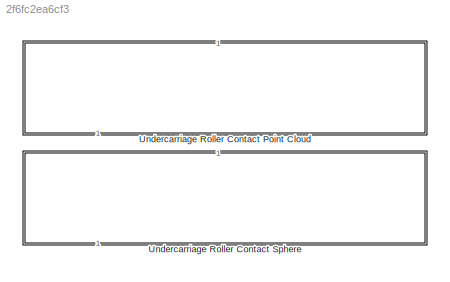
MODEL slx_2f6fc2ea6cf3
KIND library
CONFIG SolverName = VariableStepAuto
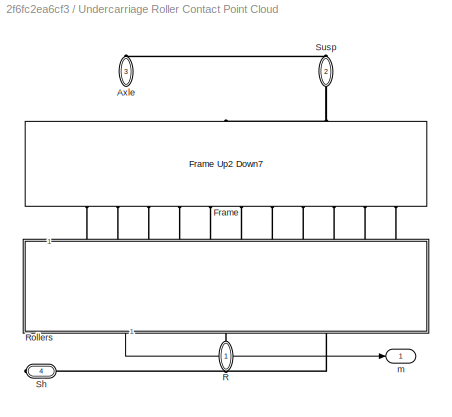
BLOCK [SubSystem] Undercarriage Roller Contact Point Cloud
  NameLocation = left
BLOCK [PMIOPort] Undercarriage Roller Contact Point Cloud/Axle
  NameLocation = left
  Port = 3
  Side = Right
BLOCK [Reference] Undercarriage Roller Contact Point Cloud/Frame  REF=sm_trackV_lib_frame_i1u2l7/Frame
Up2 Down7
  NameLocation = left
  SourceBlock = sm_trackV_lib_frame_i1u2l7/Frame\nUp2 Down7
  SourceType = Frame Locations, Sprocket, Rollers (9), Idler (1)
BLOCK [PMIOPort] Undercarriage Roller Contact Point Cloud/R
  NameLocation = left
  Side = Right
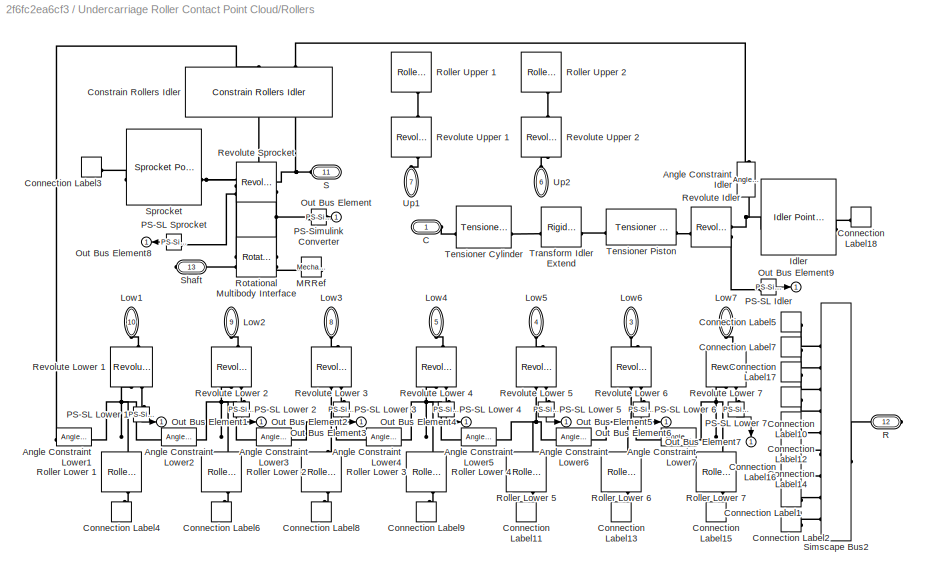
BLOCK [SubSystem] Undercarriage Roller Contact Point Cloud/Rollers
  NameLocation = left
BLOCK [Reference] Undercarriage Roller Contact Point Cloud/Rollers/Angle Constraint Idler  REF=sm_rollerV_lib_underc_elem/Angle
Constraint
  NameLocation = left
  SourceBlock = sm_rollerV_lib_underc_elem/Angle\nConstraint
  SourceType = SubSystem
BLOCK [Reference] Undercarriage Roller Contact Point Cloud/Rollers/Angle Constraint Lower1  REF=sm_rollerV_lib_underc_elem/Angle
Constraint
  SourceBlock = sm_rollerV_lib_underc_elem/Angle\nConstraint
  SourceType = SubSystem
BLOCK [Reference] Undercarriage Roller Contact Point Cloud/Rollers/Angle Constraint Lower2  REF=sm_rollerV_lib_underc_elem/Angle
Constraint
  SourceBlock = sm_rollerV_lib_underc_elem/Angle\nConstraint
  SourceType = SubSystem
BLOCK [Reference] Undercarriage Roller Contact Point Cloud/Rollers/Angle Constraint Lower3  REF=sm_rollerV_lib_underc_elem/Angle
Constraint
  SourceBlock = sm_rollerV_lib_underc_elem/Angle\nConstraint
  SourceType = SubSystem
BLOCK [Reference] Undercarriage Roller Contact Point Cloud/Rollers/Angle Constraint Lower4  REF=sm_rollerV_lib_underc_elem/Angle
Constraint
  SourceBlock = sm_rollerV_lib_underc_elem/Angle\nConstraint
  SourceType = SubSystem
BLOCK [Reference] Undercarriage Roller Contact Point Cloud/Rollers/Angle Constraint Lower5  REF=sm_rollerV_lib_underc_elem/Angle
Constraint
  SourceBlock = sm_rollerV_lib_underc_elem/Angle\nConstraint
  SourceType = SubSystem
BLOCK [Reference] Undercarriage Roller Contact Point Cloud/Rollers/Angle Constraint Lower6  REF=sm_rollerV_lib_underc_elem/Angle
Constraint
  SourceBlock = sm_rollerV_lib_underc_elem/Angle\nConstraint
  SourceType = SubSystem
BLOCK [Reference] Undercarriage Roller Contact Point Cloud/Rollers/Angle Constraint Lower7  REF=sm_rollerV_lib_underc_elem/Angle
Constraint
  SourceBlock = sm_rollerV_lib_underc_elem/Angle\nConstraint
  SourceType = SubSystem
BLOCK [PMIOPort] Undercarriage Roller Contact Point Cloud/Rollers/C
  Side = Left
BLOCK [ConnectionLabel] Undercarriage Roller Contact Point Cloud/Rollers/Connection Label1
  Label = Spr
BLOCK [ConnectionLabel] Undercarriage Roller Contact Point Cloud/Rollers/Connection Label10
  Label = L4
BLOCK [ConnectionLabel] Undercarriage Roller Contact Point Cloud/Rollers/Connection Label11
  Label = L5
  NameLocation = left
BLOCK [ConnectionLabel] Undercarriage Roller Contact Point Cloud/Rollers/Connection Label12
  Label = L5
BLOCK [ConnectionLabel] Undercarriage Roller Contact Point Cloud/Rollers/Connection Label13
  Label = L6
  NameLocation = left
BLOCK [ConnectionLabel] Undercarriage Roller Contact Point Cloud/Rollers/Connection Label14
  Label = L6
BLOCK [ConnectionLabel] Undercarriage Roller Contact Point Cloud/Rollers/Connection Label15
  Label = L7
  NameLocation = left
BLOCK [ConnectionLabel] Undercarriage Roller Contact Point Cloud/Rollers/Connection Label16
  Label = L7
BLOCK [ConnectionLabel] Undercarriage Roller Contact Point Cloud/Rollers/Connection Label17
  Label = L3
BLOCK [ConnectionLabel] Undercarriage Roller Contact Point Cloud/Rollers/Connection Label18
  Label = Idl
BLOCK [ConnectionLabel] Undercarriage Roller Contact Point Cloud/Rollers/Connection Label2
  Label = Idl
BLOCK [ConnectionLabel] Undercarriage Roller Contact Point Cloud/Rollers/Connection Label3
  Label = Spr
BLOCK [ConnectionLabel] Undercarriage Roller Contact Point Cloud/Rollers/Connection Label4
  Label = L1
  NameLocation = left
BLOCK [ConnectionLabel] Undercarriage Roller Contact Point Cloud/Rollers/Connection Label5
  Label = L1
BLOCK [ConnectionLabel] Undercarriage Roller Contact Point Cloud/Rollers/Connection Label6
  Label = L2
  NameLocation = left
BLOCK [ConnectionLabel] Undercarriage Roller Contact Point Cloud/Rollers/Connection Label7
  Label = L2
BLOCK [ConnectionLabel] Undercarriage Roller Contact Point Cloud/Rollers/Connection Label8
  Label = L3
  NameLocation = left
BLOCK [ConnectionLabel] Undercarriage Roller Contact Point Cloud/Rollers/Connection Label9
  Label = L4
  NameLocation = left
BLOCK [Reference] Undercarriage Roller Contact Point Cloud/Rollers/Constrain Rollers Idler  REF=sm_rollerV_lib_underc_elem/Constrain
Rollers
Idler
  NameLocation = left
  SourceBlock = sm_rollerV_lib_underc_elem/Constrain\nRollers\nIdler
  SourceType = Constrain Sprocket, Lower Rollers, and Idler
BLOCK [Reference] Undercarriage Roller Contact Point Cloud/Rollers/Idler  REF=sm_rollerV_lib_underc_elem/Idler Point Cloud
  SourceBlock = sm_rollerV_lib_underc_elem/Idler Point Cloud
  SourceType = Idler
BLOCK [PMIOPort] Undercarriage Roller Contact Point Cloud/Rollers/Low1
  NameLocation = left
  Port = 10
  Side = Left
BLOCK [PMIOPort] Undercarriage Roller Contact Point Cloud/Rollers/Low2
  NameLocation = left
  Port = 9
  Side = Left
BLOCK [PMIOPort] Undercarriage Roller Contact Point Cloud/Rollers/Low3
  NameLocation = left
  Port = 8
  Side = Left
BLOCK [PMIOPort] Undercarriage Roller Contact Point Cloud/Rollers/Low4
  NameLocation = left
  Port = 5
  Side = Left
BLOCK [PMIOPort] Undercarriage Roller Contact Point Cloud/Rollers/Low5
  NameLocation = left
  Port = 4
  Side = Left
BLOCK [PMIOPort] Undercarriage Roller Contact Point Cloud/Rollers/Low6
  NameLocation = left
  Port = 3
  Side = Left
BLOCK [PMIOPort] Undercarriage Roller Contact Point Cloud/Rollers/Low7
  NameLocation = left
  Port = 2
  Side = Left
BLOCK [Reference] Undercarriage Roller Contact Point Cloud/Rollers/MRRef  REF=fl_lib/Mechanical/Rotational Elements/Mechanical
Rotational Reference
  NameLocation = right
  SourceBlock = fl_lib/Mechanical/Rotational Elements/Mechanical\nRotational Reference
  SourceType = Mechanical\nRotational Reference
BLOCK [Outport] Undercarriage Roller Contact Point Cloud/Rollers/Out Bus Element
  NameLocation = top
BLOCK [Outport] Undercarriage Roller Contact Point Cloud/Rollers/Out Bus Element1
  NameLocation = left
BLOCK [Outport] Undercarriage Roller Contact Point Cloud/Rollers/Out Bus Element2
  NameLocation = top
BLOCK [Outport] Undercarriage Roller Contact Point Cloud/Rollers/Out Bus Element3
  NameLocation = top
BLOCK [Outport] Undercarriage Roller Contact Point Cloud/Rollers/Out Bus Element4
  NameLocation = top
BLOCK [Outport] Undercarriage Roller Contact Point Cloud/Rollers/Out Bus Element5
  NameLocation = top
BLOCK [Outport] Undercarriage Roller Contact Point Cloud/Rollers/Out Bus Element6
  NameLocation = top
BLOCK [Outport] Undercarriage Roller Contact Point Cloud/Rollers/Out Bus Element7
  NameLocation = right
BLOCK [Outport] Undercarriage Roller Contact Point Cloud/Rollers/Out Bus Element8
  NameLocation = top
BLOCK [Outport] Undercarriage Roller Contact Point Cloud/Rollers/Out Bus Element9
  NameLocation = top
BLOCK [Reference] Undercarriage Roller Contact Point Cloud/Rollers/PS-SL Idler  REF=nesl_utility/PS-Simulink
Converter
  SourceBlock = nesl_utility/PS-Simulink\nConverter
  SourceType = PS-Simulink\nConverter
BLOCK [Reference] Undercarriage Roller Contact Point Cloud/Rollers/PS-SL Lower 1  REF=nesl_utility/PS-Simulink
Converter
  NameLocation = left
  SourceBlock = nesl_utility/PS-Simulink\nConverter
  SourceType = PS-Simulink\nConverter
BLOCK [Reference] Undercarriage Roller Contact Point Cloud/Rollers/PS-SL Lower 2  REF=nesl_utility/PS-Simulink
Converter
  NameLocation = left
  SourceBlock = nesl_utility/PS-Simulink\nConverter
  SourceType = PS-Simulink\nConverter
BLOCK [Reference] Undercarriage Roller Contact Point Cloud/Rollers/PS-SL Lower 3  REF=nesl_utility/PS-Simulink
Converter
  NameLocation = left
  SourceBlock = nesl_utility/PS-Simulink\nConverter
  SourceType = PS-Simulink\nConverter
BLOCK [Reference] Undercarriage Roller Contact Point Cloud/Rollers/PS-SL Lower 4  REF=nesl_utility/PS-Simulink
Converter
  NameLocation = left
  SourceBlock = nesl_utility/PS-Simulink\nConverter
  SourceType = PS-Simulink\nConverter
BLOCK [Reference] Undercarriage Roller Contact Point Cloud/Rollers/PS-SL Lower 5  REF=nesl_utility/PS-Simulink
Converter
  NameLocation = left
  SourceBlock = nesl_utility/PS-Simulink\nConverter
  SourceType = PS-Simulink\nConverter
BLOCK [Reference] Undercarriage Roller Contact Point Cloud/Rollers/PS-SL Lower 6  REF=nesl_utility/PS-Simulink
Converter
  NameLocation = left
  SourceBlock = nesl_utility/PS-Simulink\nConverter
  SourceType = PS-Simulink\nConverter
BLOCK [Reference] Undercarriage Roller Contact Point Cloud/Rollers/PS-SL Lower 7  REF=nesl_utility/PS-Simulink
Converter
  NameLocation = left
  SourceBlock = nesl_utility/PS-Simulink\nConverter
  SourceType = PS-Simulink\nConverter
BLOCK [Reference] Undercarriage Roller Contact Point Cloud/Rollers/PS-SL Sprocket  REF=nesl_utility/PS-Simulink
Converter
  SourceBlock = nesl_utility/PS-Simulink\nConverter
  SourceType = PS-Simulink\nConverter
BLOCK [Reference] Undercarriage Roller Contact Point Cloud/Rollers/PS-Simulink Converter  REF=nesl_utility/PS-Simulink
Converter
  SourceBlock = nesl_utility/PS-Simulink\nConverter
  SourceType = PS-Simulink\nConverter
BLOCK [PMIOPort] Undercarriage Roller Contact Point Cloud/Rollers/R
  Port = 12
  Side = Right
BLOCK [Reference] Undercarriage Roller Contact Point Cloud/Rollers/Revolute Idler  REF=sm_lib/Joints/Revolute Joint
  SourceBlock = sm_lib/Joints/Revolute Joint
  SourceType = Revolute Joint
BLOCK [Reference] Undercarriage Roller Contact Point Cloud/Rollers/Revolute Lower 1  REF=sm_lib/Joints/Revolute Joint
  NameLocation = left
  SourceBlock = sm_lib/Joints/Revolute Joint
  SourceType = Revolute Joint
BLOCK [Reference] Undercarriage Roller Contact Point Cloud/Rollers/Revolute Lower 2  REF=sm_lib/Joints/Revolute Joint
  NameLocation = left
  SourceBlock = sm_lib/Joints/Revolute Joint
  SourceType = Revolute Joint
BLOCK [Reference] Undercarriage Roller Contact Point Cloud/Rollers/Revolute Lower 3  REF=sm_lib/Joints/Revolute Joint
  NameLocation = left
  SourceBlock = sm_lib/Joints/Revolute Joint
  SourceType = Revolute Joint
BLOCK [Reference] Undercarriage Roller Contact Point Cloud/Rollers/Revolute Lower 4  REF=sm_lib/Joints/Revolute Joint
  NameLocation = left
  SourceBlock = sm_lib/Joints/Revolute Joint
  SourceType = Revolute Joint
BLOCK [Reference] Undercarriage Roller Contact Point Cloud/Rollers/Revolute Lower 5  REF=sm_lib/Joints/Revolute Joint
  NameLocation = left
  SourceBlock = sm_lib/Joints/Revolute Joint
  SourceType = Revolute Joint
BLOCK [Reference] Undercarriage Roller Contact Point Cloud/Rollers/Revolute Lower 6  REF=sm_lib/Joints/Revolute Joint
  NameLocation = left
  SourceBlock = sm_lib/Joints/Revolute Joint
  SourceType = Revolute Joint
BLOCK [Reference] Undercarriage Roller Contact Point Cloud/Rollers/Revolute Lower 7  REF=sm_lib/Joints/Revolute Joint
  NameLocation = left
  SourceBlock = sm_lib/Joints/Revolute Joint
  SourceType = Revolute Joint
BLOCK [Reference] Undercarriage Roller Contact Point Cloud/Rollers/Revolute Sprocket  REF=sm_lib/Joints/Revolute Joint
  SourceBlock = sm_lib/Joints/Revolute Joint
  SourceType = Revolute Joint
BLOCK [Reference] Undercarriage Roller Contact Point Cloud/Rollers/Revolute Upper 1  REF=sm_lib/Joints/Revolute Joint
  NameLocation = right
  SourceBlock = sm_lib/Joints/Revolute Joint
  SourceType = Revolute Joint
BLOCK [Reference] Undercarriage Roller Contact Point Cloud/Rollers/Revolute Upper 2  REF=sm_lib/Joints/Revolute Joint
  NameLocation = right
  SourceBlock = sm_lib/Joints/Revolute Joint
  SourceType = Revolute Joint
BLOCK [Reference] Undercarriage Roller Contact Point Cloud/Rollers/Roller Lower 1  REF=sm_rollerV_lib_underc_elem/Roller Lower
Point Cloud
  LibrarySourceBlock = sm_chain_drive_lib/Pulley_Bot
  NameLocation = left
  SourceBlock = sm_rollerV_lib_underc_elem/Roller Lower\nPoint Cloud
  SourceType = Lower Roller
BLOCK [Reference] Undercarriage Roller Contact Point Cloud/Rollers/Roller Lower 2  REF=sm_rollerV_lib_underc_elem/Roller Lower
Point Cloud
  LibrarySourceBlock = sm_chain_drive_lib/Pulley_Bot
  NameLocation = left
  SourceBlock = sm_rollerV_lib_underc_elem/Roller Lower\nPoint Cloud
  SourceType = Lower Roller
BLOCK [Reference] Undercarriage Roller Contact Point Cloud/Rollers/Roller Lower 3  REF=sm_rollerV_lib_underc_elem/Roller Lower
Point Cloud
  LibrarySourceBlock = sm_chain_drive_lib/Pulley_Bot
  NameLocation = left
  SourceBlock = sm_rollerV_lib_underc_elem/Roller Lower\nPoint Cloud
  SourceType = Lower Roller
BLOCK [Reference] Undercarriage Roller Contact Point Cloud/Rollers/Roller Lower 4  REF=sm_rollerV_lib_underc_elem/Roller Lower
Point Cloud
  LibrarySourceBlock = sm_chain_drive_lib/Pulley_Bot
  NameLocation = left
  SourceBlock = sm_rollerV_lib_underc_elem/Roller Lower\nPoint Cloud
  SourceType = Lower Roller
BLOCK [Reference] Undercarriage Roller Contact Point Cloud/Rollers/Roller Lower 5  REF=sm_rollerV_lib_underc_elem/Roller Lower
Point Cloud
  LibrarySourceBlock = sm_chain_drive_lib/Pulley_Bot
  NameLocation = left
  SourceBlock = sm_rollerV_lib_underc_elem/Roller Lower\nPoint Cloud
  SourceType = Lower Roller
BLOCK [Reference] Undercarriage Roller Contact Point Cloud/Rollers/Roller Lower 6  REF=sm_rollerV_lib_underc_elem/Roller Lower
Point Cloud
  LibrarySourceBlock = sm_chain_drive_lib/Pulley_Bot
  NameLocation = left
  SourceBlock = sm_rollerV_lib_underc_elem/Roller Lower\nPoint Cloud
  SourceType = Lower Roller
BLOCK [Reference] Undercarriage Roller Contact Point Cloud/Rollers/Roller Lower 7  REF=sm_rollerV_lib_underc_elem/Roller Lower
Point Cloud
  LibrarySourceBlock = sm_chain_drive_lib/Pulley_Bot
  NameLocation = left
  SourceBlock = sm_rollerV_lib_underc_elem/Roller Lower\nPoint Cloud
  SourceType = Lower Roller
BLOCK [Reference] Undercarriage Roller Contact Point Cloud/Rollers/Roller Upper 1  REF=sm_trackV_lib_chain_underc_elem/Roller Upper
  LibrarySourceBlock = sm_chain_drive_lib/Pulley_Top
  NameLocation = right
  SourceBlock = sm_trackV_lib_chain_underc_elem/Roller Upper
  SourceType = Upper Roller
BLOCK [Reference] Undercarriage Roller Contact Point Cloud/Rollers/Roller Upper 2  REF=sm_trackV_lib_chain_underc_elem/Roller Upper
  LibrarySourceBlock = sm_chain_drive_lib/Pulley_Top
  NameLocation = right
  SourceBlock = sm_trackV_lib_chain_underc_elem/Roller Upper
  SourceType = Upper Roller
BLOCK [Reference] Undercarriage Roller Contact Point Cloud/Rollers/Rotational Multibody Interface  REF=fl_lib/Mechanical/Multibody Interfaces/Rotational Multibody
Interface
  SourceBlock = fl_lib/Mechanical/Multibody Interfaces/Rotational Multibody\nInterface
  SourceType = Rotational Multibody\nInterface
BLOCK [PMIOPort] Undercarriage Roller Contact Point Cloud/Rollers/S
  NameLocation = top
  Port = 11
  Side = Left
BLOCK [PMIOPort] Undercarriage Roller Contact Point Cloud/Rollers/Shaft
  Port = 13
  Side = Right
BLOCK [SimscapeBus] Undercarriage Roller Contact Point Cloud/Rollers/Simscape Bus2
  ConnectionType = Bus: CBO_Roller9
  HierarchyStrings = P1;P2;P3;P4;P5;P6;P7;P8;P9
  NameLocation = top
BLOCK [Reference] Undercarriage Roller Contact Point Cloud/Rollers/Sprocket  REF=sm_rollerV_lib_underc_elem/Sprocket Point Cloud
  SourceBlock = sm_rollerV_lib_underc_elem/Sprocket Point Cloud
  SourceType = Sprocket
BLOCK [Reference] Undercarriage Roller Contact Point Cloud/Rollers/Tensioner Cylinder  REF=sm_trackV_lib_chain_underc_elem/Tensioner Cylinder
  LibrarySourceBlock = sm_chain_drive_lib/Idler_Housing
  SourceBlock = sm_trackV_lib_chain_underc_elem/Tensioner Cylinder
  SourceType = Tensioner Cylinder
BLOCK [Reference] Undercarriage Roller Contact Point Cloud/Rollers/Tensioner Piston  REF=sm_trackV_lib_chain_underc_elem/Tensioner Piston
  LibrarySourceBlock = sm_chain_drive_lib/ldler_Damper
  SourceBlock = sm_trackV_lib_chain_underc_elem/Tensioner Piston
  SourceType = Tensioner Piston and Bracket
BLOCK [Reference] Undercarriage Roller Contact Point Cloud/Rollers/Transform Idler Extend  REF=sm_lib/Frames and
Transforms/Rigid
Transform
  SourceBlock = sm_lib/Frames and\nTransforms/Rigid\nTransform
  SourceType = Rigid\nTransform
BLOCK [PMIOPort] Undercarriage Roller Contact Point Cloud/Rollers/Up1
  NameLocation = right
  Port = 7
  Side = Left
BLOCK [PMIOPort] Undercarriage Roller Contact Point Cloud/Rollers/Up2
  NameLocation = right
  Port = 6
  Side = Left
BLOCK [PMIOPort] Undercarriage Roller Contact Point Cloud/Sh
  NameLocation = top
  Port = 4
  Side = Right
BLOCK [PMIOPort] Undercarriage Roller Contact Point Cloud/Susp
  NameLocation = left
  Port = 2
  Side = Right
BLOCK [Outport] Undercarriage Roller Contact Point Cloud/m
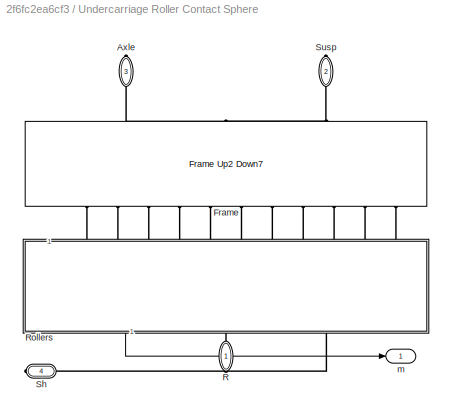
BLOCK [SubSystem] Undercarriage Roller Contact Sphere
  NameLocation = left
BLOCK [PMIOPort] Undercarriage Roller Contact Sphere/Axle
  NameLocation = left
  Port = 3
  Side = Right
BLOCK [Reference] Undercarriage Roller Contact Sphere/Frame  REF=sm_trackV_lib_frame_i1u2l7/Frame
Up2 Down7
  NameLocation = left
  SourceBlock = sm_trackV_lib_frame_i1u2l7/Frame\nUp2 Down7
  SourceType = Frame Locations, Sprocket, Rollers (9), Idler (1)
BLOCK [PMIOPort] Undercarriage Roller Contact Sphere/R
  NameLocation = left
  Side = Right
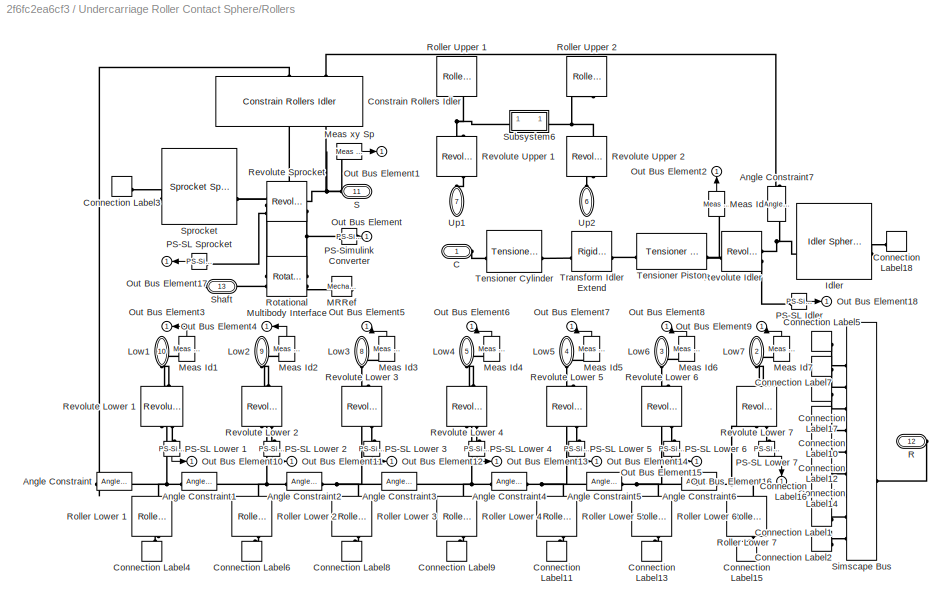
BLOCK [SubSystem] Undercarriage Roller Contact Sphere/Rollers
  NameLocation = left
BLOCK [Reference] Undercarriage Roller Contact Sphere/Rollers/Angle Constraint  REF=sm_rollerV_lib_underc_elem/Angle
Constraint
  SourceBlock = sm_rollerV_lib_underc_elem/Angle\nConstraint
  SourceType = SubSystem
BLOCK [Reference] Undercarriage Roller Contact Sphere/Rollers/Angle Constraint1  REF=sm_rollerV_lib_underc_elem/Angle
Constraint
  SourceBlock = sm_rollerV_lib_underc_elem/Angle\nConstraint
  SourceType = SubSystem
BLOCK [Reference] Undercarriage Roller Contact Sphere/Rollers/Angle Constraint2  REF=sm_rollerV_lib_underc_elem/Angle
Constraint
  SourceBlock = sm_rollerV_lib_underc_elem/Angle\nConstraint
  SourceType = SubSystem
BLOCK [Reference] Undercarriage Roller Contact Sphere/Rollers/Angle Constraint3  REF=sm_rollerV_lib_underc_elem/Angle
Constraint
  SourceBlock = sm_rollerV_lib_underc_elem/Angle\nConstraint
  SourceType = SubSystem
BLOCK [Reference] Undercarriage Roller Contact Sphere/Rollers/Angle Constraint4  REF=sm_rollerV_lib_underc_elem/Angle
Constraint
  SourceBlock = sm_rollerV_lib_underc_elem/Angle\nConstraint
  SourceType = SubSystem
BLOCK [Reference] Undercarriage Roller Contact Sphere/Rollers/Angle Constraint5  REF=sm_rollerV_lib_underc_elem/Angle
Constraint
  SourceBlock = sm_rollerV_lib_underc_elem/Angle\nConstraint
  SourceType = SubSystem
BLOCK [Reference] Undercarriage Roller Contact Sphere/Rollers/Angle Constraint6  REF=sm_rollerV_lib_underc_elem/Angle
Constraint
  SourceBlock = sm_rollerV_lib_underc_elem/Angle\nConstraint
  SourceType = SubSystem
BLOCK [Reference] Undercarriage Roller Contact Sphere/Rollers/Angle Constraint7  REF=sm_rollerV_lib_underc_elem/Angle
Constraint
  NameLocation = left
  SourceBlock = sm_rollerV_lib_underc_elem/Angle\nConstraint
  SourceType = SubSystem
BLOCK [PMIOPort] Undercarriage Roller Contact Sphere/Rollers/C
  Side = Left
BLOCK [ConnectionLabel] Undercarriage Roller Contact Sphere/Rollers/Connection Label1
  Label = Spr
BLOCK [ConnectionLabel] Undercarriage Roller Contact Sphere/Rollers/Connection Label10
  Label = L4
BLOCK [ConnectionLabel] Undercarriage Roller Contact Sphere/Rollers/Connection Label11
  Label = L5
  NameLocation = left
BLOCK [ConnectionLabel] Undercarriage Roller Contact Sphere/Rollers/Connection Label12
  Label = L5
BLOCK [ConnectionLabel] Undercarriage Roller Contact Sphere/Rollers/Connection Label13
  Label = L6
  NameLocation = left
BLOCK [ConnectionLabel] Undercarriage Roller Contact Sphere/Rollers/Connection Label14
  Label = L6
BLOCK [ConnectionLabel] Undercarriage Roller Contact Sphere/Rollers/Connection Label15
  Label = L7
  NameLocation = left
BLOCK [ConnectionLabel] Undercarriage Roller Contact Sphere/Rollers/Connection Label16
  Label = L7
BLOCK [ConnectionLabel] Undercarriage Roller Contact Sphere/Rollers/Connection Label17
  Label = L3
BLOCK [ConnectionLabel] Undercarriage Roller Contact Sphere/Rollers/Connection Label18
  Label = Idl
BLOCK [ConnectionLabel] Undercarriage Roller Contact Sphere/Rollers/Connection Label2
  Label = Idl
BLOCK [ConnectionLabel] Undercarriage Roller Contact Sphere/Rollers/Connection Label3
  Label = Spr
BLOCK [ConnectionLabel] Undercarriage Roller Contact Sphere/Rollers/Connection Label4
  Label = L1
  NameLocation = left
BLOCK [ConnectionLabel] Undercarriage Roller Contact Sphere/Rollers/Connection Label5
  Label = L1
BLOCK [ConnectionLabel] Undercarriage Roller Contact Sphere/Rollers/Connection Label6
  Label = L2
  NameLocation = left
BLOCK [ConnectionLabel] Undercarriage Roller Contact Sphere/Rollers/Connection Label7
  Label = L2
BLOCK [ConnectionLabel] Undercarriage Roller Contact Sphere/Rollers/Connection Label8
  Label = L3
  NameLocation = left
BLOCK [ConnectionLabel] Undercarriage Roller Contact Sphere/Rollers/Connection Label9
  Label = L4
  NameLocation = left
BLOCK [Reference] Undercarriage Roller Contact Sphere/Rollers/Constrain Rollers Idler  REF=sm_rollerV_lib_underc_elem/Constrain
Rollers
Idler
  NameLocation = left
  SourceBlock = sm_rollerV_lib_underc_elem/Constrain\nRollers\nIdler
  SourceType = Constrain Sprocket, Lower Rollers, and Idler
BLOCK [Reference] Undercarriage Roller Contact Sphere/Rollers/Idler  REF=sm_rollerV_lib_underc_elem/Idler Spheres
  SourceBlock = sm_rollerV_lib_underc_elem/Idler Spheres
  SourceType = Idler
BLOCK [PMIOPort] Undercarriage Roller Contact Sphere/Rollers/Low1
  NameLocation = left
  Port = 10
  Side = Left
BLOCK [PMIOPort] Undercarriage Roller Contact Sphere/Rollers/Low2
  NameLocation = left
  Port = 9
  Side = Left
BLOCK [PMIOPort] Undercarriage Roller Contact Sphere/Rollers/Low3
  NameLocation = left
  Port = 8
  Side = Left
BLOCK [PMIOPort] Undercarriage Roller Contact Sphere/Rollers/Low4
  NameLocation = left
  Port = 5
  Side = Left
BLOCK [PMIOPort] Undercarriage Roller Contact Sphere/Rollers/Low5
  NameLocation = left
  Port = 4
  Side = Left
BLOCK [PMIOPort] Undercarriage Roller Contact Sphere/Rollers/Low6
  NameLocation = left
  Port = 3
  Side = Left
BLOCK [PMIOPort] Undercarriage Roller Contact Sphere/Rollers/Low7
  NameLocation = left
  Port = 2
  Side = Left
BLOCK [Reference] Undercarriage Roller Contact Sphere/Rollers/MRRef  REF=fl_lib/Mechanical/Rotational Elements/Mechanical
Rotational Reference
  NameLocation = right
  SourceBlock = fl_lib/Mechanical/Rotational Elements/Mechanical\nRotational Reference
  SourceType = Mechanical\nRotational Reference
BLOCK [Reference] Undercarriage Roller Contact Sphere/Rollers/Meas Id  REF=sm_rollerV_lib_terrain_contact_belem/Meas xy
  NameLocation = right
  SourceBlock = sm_rollerV_lib_terrain_contact_belem/Meas xy
  SourceType = Measure Cartesian Location of two frames
BLOCK [Reference] Undercarriage Roller Contact Sphere/Rollers/Meas Id1  REF=sm_rollerV_lib_terrain_contact_belem/Meas xy
  NameLocation = right
  SourceBlock = sm_rollerV_lib_terrain_contact_belem/Meas xy
  SourceType = Measure Cartesian Location of two frames
BLOCK [Reference] Undercarriage Roller Contact Sphere/Rollers/Meas Id2  REF=sm_rollerV_lib_terrain_contact_belem/Meas xy
  NameLocation = right
  SourceBlock = sm_rollerV_lib_terrain_contact_belem/Meas xy
  SourceType = Measure Cartesian Location of two frames
BLOCK [Reference] Undercarriage Roller Contact Sphere/Rollers/Meas Id3  REF=sm_rollerV_lib_terrain_contact_belem/Meas xy
  NameLocation = right
  SourceBlock = sm_rollerV_lib_terrain_contact_belem/Meas xy
  SourceType = Measure Cartesian Location of two frames
BLOCK [Reference] Undercarriage Roller Contact Sphere/Rollers/Meas Id4  REF=sm_rollerV_lib_terrain_contact_belem/Meas xy
  NameLocation = right
  SourceBlock = sm_rollerV_lib_terrain_contact_belem/Meas xy
  SourceType = Measure Cartesian Location of two frames
BLOCK [Reference] Undercarriage Roller Contact Sphere/Rollers/Meas Id5  REF=sm_rollerV_lib_terrain_contact_belem/Meas xy
  NameLocation = right
  SourceBlock = sm_rollerV_lib_terrain_contact_belem/Meas xy
  SourceType = Measure Cartesian Location of two frames
BLOCK [Reference] Undercarriage Roller Contact Sphere/Rollers/Meas Id6  REF=sm_rollerV_lib_terrain_contact_belem/Meas xy
  NameLocation = right
  SourceBlock = sm_rollerV_lib_terrain_contact_belem/Meas xy
  SourceType = Measure Cartesian Location of two frames
BLOCK [Reference] Undercarriage Roller Contact Sphere/Rollers/Meas Id7  REF=sm_rollerV_lib_terrain_contact_belem/Meas xy
  NameLocation = right
  SourceBlock = sm_rollerV_lib_terrain_contact_belem/Meas xy
  SourceType = Measure Cartesian Location of two frames
BLOCK [Reference] Undercarriage Roller Contact Sphere/Rollers/Meas xy Sp  REF=sm_rollerV_lib_terrain_contact_belem/Meas xy
  SourceBlock = sm_rollerV_lib_terrain_contact_belem/Meas xy
  SourceType = Measure Cartesian Location of two frames
BLOCK [Outport] Undercarriage Roller Contact Sphere/Rollers/Out Bus Element
  NameLocation = top
BLOCK [Outport] Undercarriage Roller Contact Sphere/Rollers/Out Bus Element1
  NameLocation = top
BLOCK [Outport] Undercarriage Roller Contact Sphere/Rollers/Out Bus Element10
  NameLocation = left
BLOCK [Outport] Undercarriage Roller Contact Sphere/Rollers/Out Bus Element11
  NameLocation = top
BLOCK [Outport] Undercarriage Roller Contact Sphere/Rollers/Out Bus Element12
  NameLocation = top
BLOCK [Outport] Undercarriage Roller Contact Sphere/Rollers/Out Bus Element13
  NameLocation = top
BLOCK [Outport] Undercarriage Roller Contact Sphere/Rollers/Out Bus Element14
  NameLocation = top
BLOCK [Outport] Undercarriage Roller Contact Sphere/Rollers/Out Bus Element15
  NameLocation = top
BLOCK [Outport] Undercarriage Roller Contact Sphere/Rollers/Out Bus Element16
  NameLocation = right
BLOCK [Outport] Undercarriage Roller Contact Sphere/Rollers/Out Bus Element17
  NameLocation = top
BLOCK [Outport] Undercarriage Roller Contact Sphere/Rollers/Out Bus Element18
  NameLocation = top
BLOCK [Outport] Undercarriage Roller Contact Sphere/Rollers/Out Bus Element2
  NameLocation = left
BLOCK [Outport] Undercarriage Roller Contact Sphere/Rollers/Out Bus Element3
BLOCK [Outport] Undercarriage Roller Contact Sphere/Rollers/Out Bus Element4
BLOCK [Outport] Undercarriage Roller Contact Sphere/Rollers/Out Bus Element5
BLOCK [Outport] Undercarriage Roller Contact Sphere/Rollers/Out Bus Element6
BLOCK [Outport] Undercarriage Roller Contact Sphere/Rollers/Out Bus Element7
BLOCK [Outport] Undercarriage Roller Contact Sphere/Rollers/Out Bus Element8
BLOCK [Outport] Undercarriage Roller Contact Sphere/Rollers/Out Bus Element9
BLOCK [Reference] Undercarriage Roller Contact Sphere/Rollers/PS-SL Idler  REF=nesl_utility/PS-Simulink
Converter
  SourceBlock = nesl_utility/PS-Simulink\nConverter
  SourceType = PS-Simulink\nConverter
BLOCK [Reference] Undercarriage Roller Contact Sphere/Rollers/PS-SL Lower 1  REF=nesl_utility/PS-Simulink
Converter
  NameLocation = left
  SourceBlock = nesl_utility/PS-Simulink\nConverter
  SourceType = PS-Simulink\nConverter
BLOCK [Reference] Undercarriage Roller Contact Sphere/Rollers/PS-SL Lower 2  REF=nesl_utility/PS-Simulink
Converter
  NameLocation = left
  SourceBlock = nesl_utility/PS-Simulink\nConverter
  SourceType = PS-Simulink\nConverter
BLOCK [Reference] Undercarriage Roller Contact Sphere/Rollers/PS-SL Lower 3  REF=nesl_utility/PS-Simulink
Converter
  NameLocation = left
  SourceBlock = nesl_utility/PS-Simulink\nConverter
  SourceType = PS-Simulink\nConverter
BLOCK [Reference] Undercarriage Roller Contact Sphere/Rollers/PS-SL Lower 4  REF=nesl_utility/PS-Simulink
Converter
  NameLocation = left
  SourceBlock = nesl_utility/PS-Simulink\nConverter
  SourceType = PS-Simulink\nConverter
BLOCK [Reference] Undercarriage Roller Contact Sphere/Rollers/PS-SL Lower 5  REF=nesl_utility/PS-Simulink
Converter
  NameLocation = left
  SourceBlock = nesl_utility/PS-Simulink\nConverter
  SourceType = PS-Simulink\nConverter
BLOCK [Reference] Undercarriage Roller Contact Sphere/Rollers/PS-SL Lower 6  REF=nesl_utility/PS-Simulink
Converter
  NameLocation = left
  SourceBlock = nesl_utility/PS-Simulink\nConverter
  SourceType = PS-Simulink\nConverter
BLOCK [Reference] Undercarriage Roller Contact Sphere/Rollers/PS-SL Lower 7  REF=nesl_utility/PS-Simulink
Converter
  NameLocation = left
  SourceBlock = nesl_utility/PS-Simulink\nConverter
  SourceType = PS-Simulink\nConverter
BLOCK [Reference] Undercarriage Roller Contact Sphere/Rollers/PS-SL Sprocket  REF=nesl_utility/PS-Simulink
Converter
  SourceBlock = nesl_utility/PS-Simulink\nConverter
  SourceType = PS-Simulink\nConverter
BLOCK [Reference] Undercarriage Roller Contact Sphere/Rollers/PS-Simulink Converter  REF=nesl_utility/PS-Simulink
Converter
  SourceBlock = nesl_utility/PS-Simulink\nConverter
  SourceType = PS-Simulink\nConverter
BLOCK [PMIOPort] Undercarriage Roller Contact Sphere/Rollers/R
  Port = 12
  Side = Right
BLOCK [Reference] Undercarriage Roller Contact Sphere/Rollers/Revolute Idler  REF=sm_lib/Joints/Revolute Joint
  SourceBlock = sm_lib/Joints/Revolute Joint
  SourceType = Revolute Joint
BLOCK [Reference] Undercarriage Roller Contact Sphere/Rollers/Revolute Lower 1  REF=sm_lib/Joints/Revolute Joint
  NameLocation = left
  SourceBlock = sm_lib/Joints/Revolute Joint
  SourceType = Revolute Joint
BLOCK [Reference] Undercarriage Roller Contact Sphere/Rollers/Revolute Lower 2  REF=sm_lib/Joints/Revolute Joint
  NameLocation = left
  SourceBlock = sm_lib/Joints/Revolute Joint
  SourceType = Revolute Joint
BLOCK [Reference] Undercarriage Roller Contact Sphere/Rollers/Revolute Lower 3  REF=sm_lib/Joints/Revolute Joint
  NameLocation = left
  SourceBlock = sm_lib/Joints/Revolute Joint
  SourceType = Revolute Joint
BLOCK [Reference] Undercarriage Roller Contact Sphere/Rollers/Revolute Lower 4  REF=sm_lib/Joints/Revolute Joint
  NameLocation = left
  SourceBlock = sm_lib/Joints/Revolute Joint
  SourceType = Revolute Joint
BLOCK [Reference] Undercarriage Roller Contact Sphere/Rollers/Revolute Lower 5  REF=sm_lib/Joints/Revolute Joint
  NameLocation = left
  SourceBlock = sm_lib/Joints/Revolute Joint
  SourceType = Revolute Joint
BLOCK [Reference] Undercarriage Roller Contact Sphere/Rollers/Revolute Lower 6  REF=sm_lib/Joints/Revolute Joint
  NameLocation = left
  SourceBlock = sm_lib/Joints/Revolute Joint
  SourceType = Revolute Joint
BLOCK [Reference] Undercarriage Roller Contact Sphere/Rollers/Revolute Lower 7  REF=sm_lib/Joints/Revolute Joint
  NameLocation = left
  SourceBlock = sm_lib/Joints/Revolute Joint
  SourceType = Revolute Joint
BLOCK [Reference] Undercarriage Roller Contact Sphere/Rollers/Revolute Sprocket  REF=sm_lib/Joints/Revolute Joint
  SourceBlock = sm_lib/Joints/Revolute Joint
  SourceType = Revolute Joint
BLOCK [Reference] Undercarriage Roller Contact Sphere/Rollers/Revolute Upper 1  REF=sm_lib/Joints/Revolute Joint
  NameLocation = right
  SourceBlock = sm_lib/Joints/Revolute Joint
  SourceType = Revolute Joint
BLOCK [Reference] Undercarriage Roller Contact Sphere/Rollers/Revolute Upper 2  REF=sm_lib/Joints/Revolute Joint
  NameLocation = right
  SourceBlock = sm_lib/Joints/Revolute Joint
  SourceType = Revolute Joint
BLOCK [Reference] Undercarriage Roller Contact Sphere/Rollers/Roller Lower 1  REF=sm_rollerV_lib_underc_elem/Roller Lower
Spheres
  LibrarySourceBlock = sm_chain_drive_lib/Pulley_Bot
  NameLocation = left
  SourceBlock = sm_rollerV_lib_underc_elem/Roller Lower\nSpheres
  SourceType = Lower Roller with Ground Contact
BLOCK [Reference] Undercarriage Roller Contact Sphere/Rollers/Roller Lower 2  REF=sm_rollerV_lib_underc_elem/Roller Lower
Spheres
  LibrarySourceBlock = sm_chain_drive_lib/Pulley_Bot
  NameLocation = left
  SourceBlock = sm_rollerV_lib_underc_elem/Roller Lower\nSpheres
  SourceType = Lower Roller with Ground Contact
BLOCK [Reference] Undercarriage Roller Contact Sphere/Rollers/Roller Lower 3  REF=sm_rollerV_lib_underc_elem/Roller Lower
Spheres
  LibrarySourceBlock = sm_chain_drive_lib/Pulley_Bot
  NameLocation = left
  SourceBlock = sm_rollerV_lib_underc_elem/Roller Lower\nSpheres
  SourceType = Lower Roller with Ground Contact
BLOCK [Reference] Undercarriage Roller Contact Sphere/Rollers/Roller Lower 4  REF=sm_rollerV_lib_underc_elem/Roller Lower
Spheres
  LibrarySourceBlock = sm_chain_drive_lib/Pulley_Bot
  NameLocation = left
  SourceBlock = sm_rollerV_lib_underc_elem/Roller Lower\nSpheres
  SourceType = Lower Roller with Ground Contact
BLOCK [Reference] Undercarriage Roller Contact Sphere/Rollers/Roller Lower 5  REF=sm_rollerV_lib_underc_elem/Roller Lower
Spheres
  LibrarySourceBlock = sm_chain_drive_lib/Pulley_Bot
  NameLocation = left
  SourceBlock = sm_rollerV_lib_underc_elem/Roller Lower\nSpheres
  SourceType = Lower Roller with Ground Contact
BLOCK [Reference] Undercarriage Roller Contact Sphere/Rollers/Roller Lower 6  REF=sm_rollerV_lib_underc_elem/Roller Lower
Spheres
  LibrarySourceBlock = sm_chain_drive_lib/Pulley_Bot
  NameLocation = left
  SourceBlock = sm_rollerV_lib_underc_elem/Roller Lower\nSpheres
  SourceType = Lower Roller with Ground Contact
BLOCK [Reference] Undercarriage Roller Contact Sphere/Rollers/Roller Lower 7  REF=sm_rollerV_lib_underc_elem/Roller Lower
Spheres
  LibrarySourceBlock = sm_chain_drive_lib/Pulley_Bot
  NameLocation = left
  SourceBlock = sm_rollerV_lib_underc_elem/Roller Lower\nSpheres
  SourceType = Lower Roller with Ground Contact
BLOCK [Reference] Undercarriage Roller Contact Sphere/Rollers/Roller Upper 1  REF=sm_trackV_lib_chain_underc_elem/Roller Upper
  LibrarySourceBlock = sm_chain_drive_lib/Pulley_Top
  NameLocation = right
  SourceBlock = sm_trackV_lib_chain_underc_elem/Roller Upper
  SourceType = Upper Roller
BLOCK [Reference] Undercarriage Roller Contact Sphere/Rollers/Roller Upper 2  REF=sm_trackV_lib_chain_underc_elem/Roller Upper
  LibrarySourceBlock = sm_chain_drive_lib/Pulley_Top
  NameLocation = right
  SourceBlock = sm_trackV_lib_chain_underc_elem/Roller Upper
  SourceType = Upper Roller
BLOCK [Reference] Undercarriage Roller Contact Sphere/Rollers/Rotational Multibody Interface  REF=fl_lib/Mechanical/Multibody Interfaces/Rotational Multibody
Interface
  SourceBlock = fl_lib/Mechanical/Multibody Interfaces/Rotational Multibody\nInterface
  SourceType = Rotational Multibody\nInterface
BLOCK [PMIOPort] Undercarriage Roller Contact Sphere/Rollers/S
  NameLocation = top
  Port = 11
  Side = Left
BLOCK [PMIOPort] Undercarriage Roller Contact Sphere/Rollers/Shaft
  Port = 13
  Side = Right
BLOCK [SimscapeBus] Undercarriage Roller Contact Sphere/Rollers/Simscape Bus
  HierarchyStrings = L1;L2;L3;L4;L5;L6;L7;L8;L9
BLOCK [Reference] Undercarriage Roller Contact Sphere/Rollers/Sprocket  REF=sm_rollerV_lib_underc_elem/Sprocket Spheres
  SourceBlock = sm_rollerV_lib_underc_elem/Sprocket Spheres
  SourceType = Sprocket with Ground Contact (Spheres)
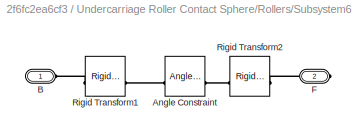
BLOCK [SubSystem] Undercarriage Roller Contact Sphere/Rollers/Subsystem6
BLOCK [Reference] Undercarriage Roller Contact Sphere/Rollers/Subsystem6/Angle Constraint  REF=sm_lib/Constraints/Angle
Constraint
  SourceBlock = sm_lib/Constraints/Angle\nConstraint
  SourceType = Angle\nConstraint
BLOCK [PMIOPort] Undercarriage Roller Contact Sphere/Rollers/Subsystem6/B
  Side = Left
BLOCK [PMIOPort] Undercarriage Roller Contact Sphere/Rollers/Subsystem6/F
  Port = 2
  Side = Right
BLOCK [Reference] Undercarriage Roller Contact Sphere/Rollers/Subsystem6/Rigid Transform1  REF=sm_lib/Frames and
Transforms/Rigid
Transform
  SourceBlock = sm_lib/Frames and\nTransforms/Rigid\nTransform
  SourceType = Rigid\nTransform
BLOCK [Reference] Undercarriage Roller Contact Sphere/Rollers/Subsystem6/Rigid Transform2  REF=sm_lib/Frames and
Transforms/Rigid
Transform
  NameLocation = top
  SourceBlock = sm_lib/Frames and\nTransforms/Rigid\nTransform
  SourceType = Rigid\nTransform
BLOCK [Reference] Undercarriage Roller Contact Sphere/Rollers/Tensioner Cylinder  REF=sm_trackV_lib_chain_underc_elem/Tensioner Cylinder
  LibrarySourceBlock = sm_chain_drive_lib/Idler_Housing
  SourceBlock = sm_trackV_lib_chain_underc_elem/Tensioner Cylinder
  SourceType = Tensioner Cylinder
BLOCK [Reference] Undercarriage Roller Contact Sphere/Rollers/Tensioner Piston  REF=sm_trackV_lib_chain_underc_elem/Tensioner Piston
  LibrarySourceBlock = sm_chain_drive_lib/ldler_Damper
  SourceBlock = sm_trackV_lib_chain_underc_elem/Tensioner Piston
  SourceType = Tensioner Piston and Bracket
BLOCK [Reference] Undercarriage Roller Contact Sphere/Rollers/Transform Idler Extend  REF=sm_lib/Frames and
Transforms/Rigid
Transform
  SourceBlock = sm_lib/Frames and\nTransforms/Rigid\nTransform
  SourceType = Rigid\nTransform
BLOCK [PMIOPort] Undercarriage Roller Contact Sphere/Rollers/Up1
  NameLocation = right
  Port = 7
  Side = Left
BLOCK [PMIOPort] Undercarriage Roller Contact Sphere/Rollers/Up2
  NameLocation = right
  Port = 6
  Side = Left
BLOCK [PMIOPort] Undercarriage Roller Contact Sphere/Sh
  NameLocation = top
  Port = 4
  Side = Right
BLOCK [PMIOPort] Undercarriage Roller Contact Sphere/Susp
  NameLocation = left
  Port = 2
  Side = Right
BLOCK [Outport] Undercarriage Roller Contact Sphere/m
LINE Undercarriage Roller Contact Sphere/Rollers:1 -> Undercarriage Roller Contact Sphere/m:1
PLINE Undercarriage Roller Contact Sphere/Axle:RConn1 -- Undercarriage Roller Contact Sphere/Frame:LConn2
PLINE Undercarriage Roller Contact Sphere/Frame:LConn1 -- Undercarriage Roller Contact Sphere/Susp:RConn1
PLINE Undercarriage Roller Contact Sphere/Frame:RConn1 -- Undercarriage Roller Contact Sphere/Rollers:LConn1
PLINE Undercarriage Roller Contact Sphere/Frame:RConn10 -- Undercarriage Roller Contact Sphere/Rollers:LConn10
PLINE Undercarriage Roller Contact Sphere/Frame:RConn11 -- Undercarriage Roller Contact Sphere/Rollers:LConn11
PLINE Undercarriage Roller Contact Sphere/Frame:RConn2 -- Undercarriage Roller Contact Sphere/Rollers:LConn2
PLINE Undercarriage Roller Contact Sphere/Frame:RConn3 -- Undercarriage Roller Contact Sphere/Rollers:LConn3
PLINE Undercarriage Roller Contact Sphere/Frame:RConn4 -- Undercarriage Roller Contact Sphere/Rollers:LConn4
PLINE Undercarriage Roller Contact Sphere/Frame:RConn5 -- Undercarriage Roller Contact Sphere/Rollers:LConn5
PLINE Undercarriage Roller Contact Sphere/Frame:RConn6 -- Undercarriage Roller Contact Sphere/Rollers:LConn6
PLINE Undercarriage Roller Contact Sphere/Frame:RConn7 -- Undercarriage Roller Contact Sphere/Rollers:LConn7
PLINE Undercarriage Roller Contact Sphere/Frame:RConn8 -- Undercarriage Roller Contact Sphere/Rollers:LConn8
PLINE Undercarriage Roller Contact Sphere/Frame:RConn9 -- Undercarriage Roller Contact Sphere/Rollers:LConn9
PLINE Undercarriage Roller Contact Sphere/R:RConn1 -- Undercarriage Roller Contact Sphere/Rollers:RConn1
PLINE Undercarriage Roller Contact Sphere/Rollers:RConn2 -- Undercarriage Roller Contact Sphere/Sh:RConn1
